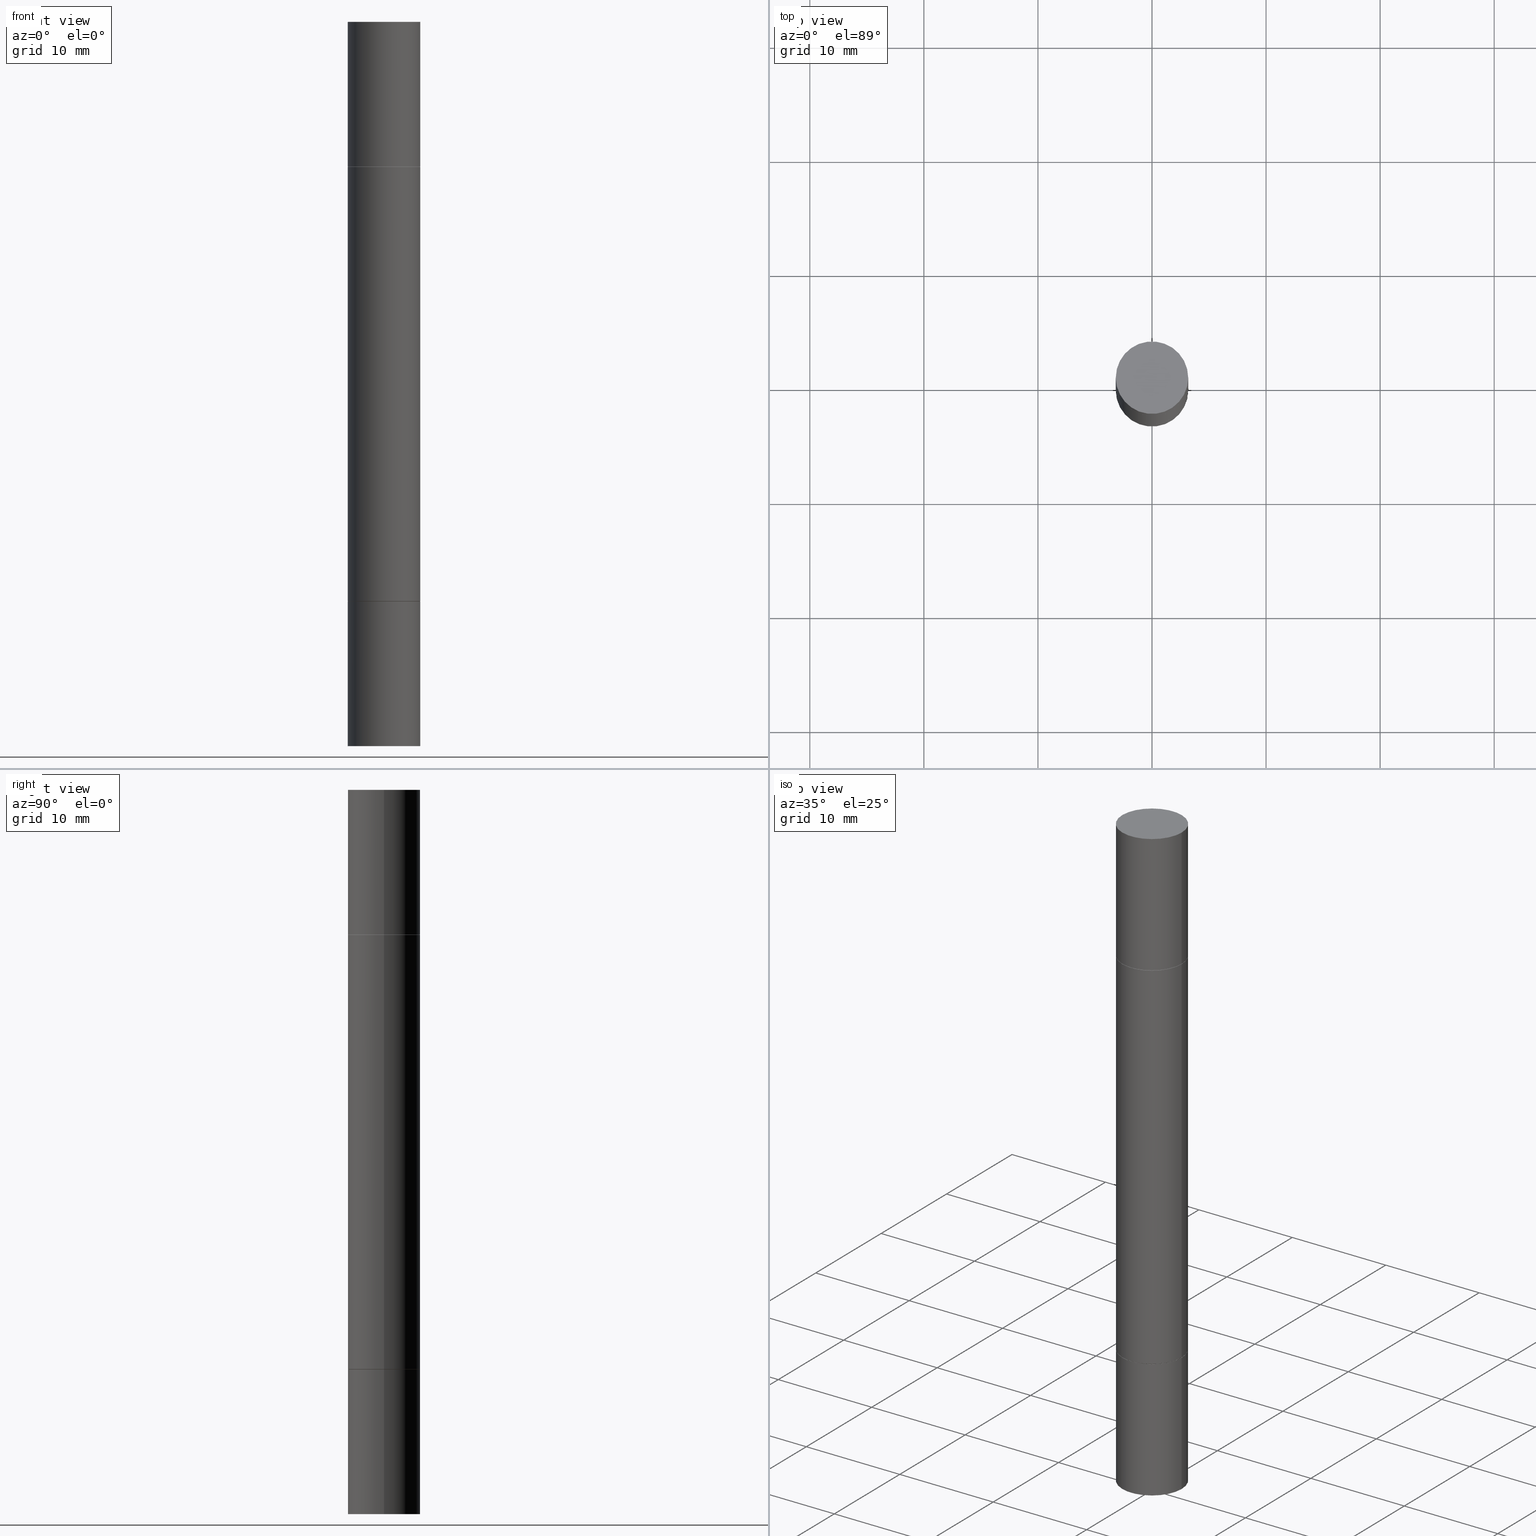
[diagram: canonical four-view strip — front | top / right | iso, engineering-drawing reading convention]
A machine part, canonical four-view strip (front | top / right | iso — engineering-drawing reading convention). The complete STEP part file that produces these views, byte-faithful:
ISO-10303-21;
HEADER;
FILE_DESCRIPTION (( 'STEP AP203' ),
    '1' );
FILE_NAME ('39629.STEP',
    '2024-03-04T15:43:30',
    ( '' ),
    ( '' ),
    'SwSTEP 2.0',
    'SolidWorks 2023',
    '' );
FILE_SCHEMA (( 'CONFIG_CONTROL_DESIGN' ));
ENDSEC;

DATA;
#1 = CYLINDRICAL_SURFACE ( 'NONE', #407, 0.1250000000000000000 ) ;
#2 = AXIS2_PLACEMENT_3D ( 'NONE', #516, #297, #671 ) ;
#3 = AXIS2_PLACEMENT_3D ( 'NONE', #584, #80, #317 ) ;
#4 = EDGE_CURVE ( 'NONE', #480, #491, #390, .T. ) ;
#5 = ORIENTED_EDGE ( 'NONE', *, *, #632, .T. ) ;
#6 = FACE_OUTER_BOUND ( 'NONE', #273, .T. ) ;
#7 = ORIENTED_EDGE ( 'NONE', *, *, #357, .T. ) ;
#8 = CARTESIAN_POINT ( 'NONE',  ( 8.728703347108321496E-16, 0.1249999999999930195, -2.000000000000000444 ) ) ;
#9 = ADVANCED_FACE ( 'NONE', ( #603 ), #279, .T. ) ;
#10 = CC_DESIGN_PERSON_AND_ORGANIZATION_ASSIGNMENT ( #53, #104, ( #271 ) ) ;
#11 = VERTEX_POINT ( 'NONE', #490 ) ;
#12 = CARTESIAN_POINT ( 'NONE',  ( -0.1250000000000000000, -7.872902438272180196E-15, -2.499999999999999556 ) ) ;
#13 = CIRCLE ( 'NONE', #577, 0.1249999999999999861 ) ;
#14 = ORIENTED_EDGE ( 'NONE', *, *, #302, .T. ) ;
#15 = CIRCLE ( 'NONE', #27, 0.1239999999999999991 ) ;
#16 = VECTOR ( 'NONE', #525, 39.37007874015748143 ) ;
#17 = DIRECTION ( 'NONE',  ( 1.000000000000000000, -6.982962677686266711E-15, 0.000000000000000000 ) ) ;
#18 = APPROVAL_STATUS ( 'not_yet_approved' ) ;
#19 = ORIENTED_EDGE ( 'NONE', *, *, #306, .T. ) ;
#20 = CARTESIAN_POINT ( 'NONE',  ( 4.888492143564087591E-29, -1.748176755301667838E-15, -0.5009999999999996678 ) ) ;
#21 = CALENDAR_DATE ( 2024, 4, 3 ) ;
#22 = DIRECTION ( 'NONE',  ( 1.000000000000000000, -6.982962677686263555E-15, 0.000000000000000000 ) ) ;
#23 = DIRECTION ( 'NONE',  ( 0.7071067811866138531, -2.468850131082952047E-15, 0.7071067811864811814 ) ) ;
#24 = PLANE ( 'NONE',  #507 ) ;
#25 = DATE_AND_TIME ( #21, #580 ) ;
#26 = DIRECTION ( 'NONE',  ( 2.445468806185136597E-29, 3.492890411551752677E-15, 1.000000000000000000 ) ) ;
#27 = AXIS2_PLACEMENT_3D ( 'NONE', #108, #145, #305 ) ;
#28 = CIRCLE ( 'NONE', #261, 0.1250000000000000000 ) ;
#29 = DIRECTION ( 'NONE',  ( 1.000000000000000000, -6.982962677686266711E-15, 0.000000000000000000 ) ) ;
#30 = DIRECTION ( 'NONE',  ( 2.438088387897960049E-29, -3.491481338843145188E-15, -1.000000000000000000 ) ) ;
#31 = CALENDAR_DATE ( 2024, 4, 3 ) ;
#32 = EDGE_CURVE ( 'NONE', #491, #293, #13, .T. ) ;
#33 = CC_DESIGN_DATE_AND_TIME_ASSIGNMENT ( #25, #227, ( #266 ) ) ;
#34 = PERSON_AND_ORGANIZATION_ROLE ( 'design_owner' ) ;
#35 = ORIENTED_EDGE ( 'NONE', *, *, #181, .F. ) ;
#36 = MANIFOLD_SOLID_BREP ( 'Combine1', #295 ) ;
#37 = ORIENTED_EDGE ( 'NONE', *, *, #48, .T. ) ;
#38 = EDGE_CURVE ( 'NONE', #293, #491, #137, .T. ) ;
#39 = FACE_OUTER_BOUND ( 'NONE', #391, .T. ) ;
#40 = APPROVAL_ROLE ( '' ) ;
#41 = PLANE ( 'NONE',  #640 ) ;
#42 = CARTESIAN_POINT ( 'NONE',  ( -0.1249999999999999861, -8.906145055802259979E-16, -0.5009999999999996678 ) ) ;
#43 = CARTESIAN_POINT ( 'NONE',  ( 4.888492143564087591E-29, -6.979471196347447369E-15, -1.998999999999999888 ) ) ;
#44 = ORIENTED_EDGE ( 'NONE', *, *, #160, .F. ) ;
#45 = AXIS2_PLACEMENT_3D ( 'NONE', #453, #665, #464 ) ;
#46 = CARTESIAN_POINT ( 'NONE',  ( 0.1249999999999999861, -2.621047090012450585E-15, -0.5009999999999996678 ) ) ;
#47 = DIRECTION ( 'NONE',  ( 2.438088387897959769E-29, 3.492890411551753071E-15, 1.000000000000000000 ) ) ;
#48 = EDGE_CURVE ( 'NONE', #480, #424, #520, .T. ) ;
#49 = SECURITY_CLASSIFICATION_LEVEL ( 'unclassified' ) ;
#50 = DIMENSIONAL_EXPONENTS ( 1.000000000000000000, 0.000000000000000000, 0.000000000000000000, 0.000000000000000000, 0.000000000000000000, 0.000000000000000000, 0.000000000000000000 ) ;
#51 = LINE ( 'NONE', #398, #322 ) ;
#52 = CARTESIAN_POINT ( 'NONE',  ( 4.890937612370272633E-29, -6.982962677686290376E-15, -1.999999999999999778 ) ) ;
#53 = PERSON_AND_ORGANIZATION ( #549, #138 ) ;
#54 = CARTESIAN_POINT ( 'NONE',  ( 4.890937612370273194E-29, -6.982962677686291165E-15, -2.000000000000000000 ) ) ;
#55 = DIRECTION ( 'NONE',  ( 1.000000000000000000, -6.982962677686267499E-15, 0.000000000000000000 ) ) ;
#56 = CARTESIAN_POINT ( 'NONE',  ( 0.000000000000000000, -8.730464687993621641E-15, -2.499999999999999556 ) ) ;
#57 = CIRCLE ( 'NONE', #216, 0.1250000000000000000 ) ;
#58 = AXIS2_PLACEMENT_3D ( 'NONE', #142, #620, #144 ) ;
#59 = DIRECTION ( 'NONE',  ( 2.445468806185136597E-29, 3.492890411551752677E-15, 1.000000000000000000 ) ) ;
#60 = FACE_OUTER_BOUND ( 'NONE', #554, .T. ) ;
#61 = EDGE_CURVE ( 'NONE', #585, #344, #498, .T. ) ;
#62 = CARTESIAN_POINT ( 'NONE',  ( -0.1239999999999999991, -8.922983093733360288E-16, -0.4999999999999998335 ) ) ;
#63 = DIRECTION ( 'NONE',  ( 1.000000000000000000, -6.982962677686270655E-15, 0.000000000000000000 ) ) ;
#64 = AXIS2_PLACEMENT_3D ( 'NONE', #364, #677, #157 ) ;
#65 = APPROVAL_PERSON_ORGANIZATION ( #389, #134, #333 ) ;
#66 = CC_DESIGN_APPROVAL ( #613, ( #242 ) ) ;
#67 = VERTEX_POINT ( 'NONE', #337 ) ;
#68 = ADVANCED_FACE ( 'NONE', ( #443 ), #41, .F. ) ;
#69 = DIRECTION ( 'NONE',  ( 1.000000000000000000, -6.982962677686270655E-15, 0.000000000000000000 ) ) ;
#70 = ADVANCED_FACE ( 'NONE', ( #396 ), #385, .T. ) ;
#71 = ORIENTED_EDGE ( 'NONE', *, *, #386, .F. ) ;
#72 = ORIENTED_EDGE ( 'NONE', *, *, #388, .T. ) ;
#73 = EDGE_LOOP ( 'NONE', ( #538, #645, #457, #220 ) ) ;
#74 = CARTESIAN_POINT ( 'NONE',  ( 4.890937612370272633E-29, -1.744683864890116287E-15, -0.4999999999999998335 ) ) ;
#75 = CARTESIAN_POINT ( 'NONE',  ( 0.1250000000000000000, -8.728703347107833388E-16, 6.095220969744919741E-30 ) ) ;
#76 = EDGE_CURVE ( 'NONE', #323, #426, #680, .T. ) ;
#77 = ORIENTED_EDGE ( 'NONE', *, *, #447, .F. ) ;
#78 = CC_DESIGN_PERSON_AND_ORGANIZATION_ASSIGNMENT ( #402, #622, ( #242 ) ) ;
#79 = AXIS2_PLACEMENT_3D ( 'NONE', #628, #237, #254 ) ;
#80 = DIRECTION ( 'NONE',  ( 2.445468806185136597E-29, 3.492890411551752677E-15, 1.000000000000000000 ) ) ;
#81 = PLANE ( 'NONE',  #649 ) ;
#82 = CALENDAR_DATE ( 2024, 4, 3 ) ;
#83 = EDGE_LOOP ( 'NONE', ( #653, #451 ) ) ;
#84 =( LENGTH_UNIT ( ) NAMED_UNIT ( * ) SI_UNIT ( $, .METRE. ) );
#85 = DIRECTION ( 'NONE',  ( -2.445468806185136877E-29, 3.491481338843145188E-15, 1.000000000000000000 ) ) ;
#86 = DIRECTION ( 'NONE',  ( 0.000000000000000000, 0.000000000000000000, 1.000000000000000000 ) ) ;
#87 = ORIENTED_EDGE ( 'NONE', *, *, #527, .T. ) ;
#88 = DIRECTION ( 'NONE',  ( -2.445468806185136877E-29, -3.492890411551753071E-15, -1.000000000000000000 ) ) ;
#89 = ORIENTED_EDGE ( 'NONE', *, *, #557, .T. ) ;
#90 = AXIS2_PLACEMENT_3D ( 'NONE', #52, #106, #621 ) ;
#91 = AXIS2_PLACEMENT_3D ( 'NONE', #107, #515, #63 ) ;
#92 = CARTESIAN_POINT ( 'NONE',  ( -0.1250000000000000000, -6.967654592696952427E-15, -2.000000000000000000 ) ) ;
#93 = DESIGN_CONTEXT ( 'detailed design', #572, 'design' ) ;
#94 = DIRECTION ( 'NONE',  ( 1.000000000000000000, -6.982962677686267499E-15, 0.000000000000000000 ) ) ;
#95 = ORIENTED_EDGE ( 'NONE', *, *, #288, .T. ) ;
#96 = ADVANCED_FACE ( 'NONE', ( #633 ), #162, .F. ) ;
#97 = CYLINDRICAL_SURFACE ( 'NONE', #452, 0.1249999999999998612 ) ;
#98 = ORIENTED_EDGE ( 'NONE', *, *, #479, .T. ) ;
#99 = ORIENTED_EDGE ( 'NONE', *, *, #76, .F. ) ;
#100 = DATE_AND_TIME ( #31, #161 ) ;
#101 = ADVANCED_FACE ( 'NONE', ( #114 ), #405, .F. ) ;
#102 = CARTESIAN_POINT ( 'NONE',  ( -0.1249999999999998612, -2.198701964706358019E-15, -1.249999999999999778 ) ) ;
#103 = CARTESIAN_POINT ( 'NONE',  ( 0.1249999999999999861, -2.621047090012450585E-15, -0.5009999999999996678 ) ) ;
#104 = PERSON_AND_ORGANIZATION_ROLE ( 'design_supplier' ) ;
#105 = DIRECTION ( 'NONE',  ( -0.000000000000000000, -3.492185875197449130E-15, -1.000000000000000000 ) ) ;
#106 = DIRECTION ( 'NONE',  ( -2.445468806185136597E-29, 3.491481338843145583E-15, 1.000000000000000000 ) ) ;
#107 = CARTESIAN_POINT ( 'NONE',  ( 4.890937612370273194E-29, -6.982962677686291165E-15, -2.000000000000000000 ) ) ;
#108 = CARTESIAN_POINT ( 'NONE',  ( 4.890937612370272633E-29, -1.744683864890116287E-15, -0.4999999999999998335 ) ) ;
#109 = CC_DESIGN_PERSON_AND_ORGANIZATION_ASSIGNMENT ( #115, #316, ( #271 ) ) ;
#110 = CARTESIAN_POINT ( 'NONE',  ( 4.890937612370272633E-29, -1.744683864890116287E-15, -0.4999999999999998335 ) ) ;
#111 = CARTESIAN_POINT ( 'NONE',  ( 0.000000000000000000, 0.000000000000000000, 0.000000000000000000 ) ) ;
#112 = ORIENTED_EDGE ( 'NONE', *, *, #257, .F. ) ;
#113 = AXIS2_PLACEMENT_3D ( 'NONE', #291, #502, #29 ) ;
#114 = FACE_OUTER_BOUND ( 'NONE', #639, .T. ) ;
#115 = PERSON_AND_ORGANIZATION ( #549, #138 ) ;
#116 = EDGE_LOOP ( 'NONE', ( #99, #368, #95, #641 ) ) ;
#117 = EDGE_CURVE ( 'NONE', #344, #351, #495, .T. ) ;
#118 = AXIS2_PLACEMENT_3D ( 'NONE', #431, #26, #94 ) ;
#119 = EDGE_LOOP ( 'NONE', ( #318, #501, #417, #130 ) ) ;
#120 = ORIENTED_EDGE ( 'NONE', *, *, #258, .T. ) ;
#121 = DIRECTION ( 'NONE',  ( -2.445468806185136597E-29, -3.492890411551752677E-15, -1.000000000000000000 ) ) ;
#122 = ORIENTED_EDGE ( 'NONE', *, *, #48, .F. ) ;
#123 = CARTESIAN_POINT ( 'NONE',  ( 0.000000000000000000, -8.730464687993621641E-15, -2.499999999999999556 ) ) ;
#124 = DIRECTION ( 'NONE',  ( 1.000000000000000000, -6.982962677686262766E-15, 0.000000000000000000 ) ) ;
#125 = DATE_AND_TIME ( #164, #522 ) ;
#126 = APPLICATION_PROTOCOL_DEFINITION ( 'international standard', 'config_control_design', 1994, #572 ) ;
#127 = ORIENTED_EDGE ( 'NONE', *, *, #278, .T. ) ;
#128 = AXIS2_PLACEMENT_3D ( 'NONE', #382, #659, #124 ) ;
#129 = APPROVAL_PERSON_ORGANIZATION ( #526, #613, #274 ) ;
#130 = ORIENTED_EDGE ( 'NONE', *, *, #155, .T. ) ;
#131 = EDGE_CURVE ( 'NONE', #599, #485, #342, .T. ) ;
#132 = CARTESIAN_POINT ( 'NONE',  ( -0.1249999999999998612, -7.872902438272180196E-15, -2.499999999999999556 ) ) ;
#133 = CYLINDRICAL_SURFACE ( 'NONE', #128, 0.1249999999999998612 ) ;
#134 = APPROVAL ( #343, 'UNSPECIFIED' ) ;
#135 = ADVANCED_FACE ( 'NONE', ( #574 ), #226, .T. ) ;
#136 = DIRECTION ( 'NONE',  ( 1.000000000000000000, -6.982962677686263555E-15, 0.000000000000000000 ) ) ;
#137 = CIRCLE ( 'NONE', #579, 0.1249999999999999861 ) ;
#138 = ORGANIZATION ( 'UNSPECIFIED', 'UNSPECIFIED', '' ) ;
#139 = LOCAL_TIME ( 10, 43, 30.00000000000000000, #148 ) ;
#140 = DIRECTION ( 'NONE',  ( 1.000000000000000000, -6.982962677686265922E-15, 4.876176775795935793E-29 ) ) ;
#141 = EDGE_LOOP ( 'NONE', ( #120, #642 ) ) ;
#142 = CARTESIAN_POINT ( 'NONE',  ( 0.000000000000000000, -8.730464687993621641E-15, -2.499999999999999556 ) ) ;
#143 = ORIENTED_EDGE ( 'NONE', *, *, #627, .T. ) ;
#144 = DIRECTION ( 'NONE',  ( 1.000000000000000000, -6.982962677686262766E-15, 0.000000000000000000 ) ) ;
#145 = DIRECTION ( 'NONE',  ( 2.445468806185136597E-29, 3.492890411551752677E-15, 1.000000000000000000 ) ) ;
#146 = AXIS2_PLACEMENT_3D ( 'NONE', #313, #668, #193 ) ;
#147 = CIRCLE ( 'NONE', #484, 0.1249999999999998612 ) ;
#148 = COORDINATED_UNIVERSAL_TIME_OFFSET ( 5, 0, .BEHIND. ) ;
#149 = CARTESIAN_POINT ( 'NONE',  ( 0.1250000000000000000, -2.617554199600898443E-15, -0.4999999999999996114 ) ) ;
#150 = ADVANCED_BREP_SHAPE_REPRESENTATION ( '39629', ( #243, #476, #246, #247, #36, #397 ), #423 ) ;
#151 = FACE_OUTER_BOUND ( 'NONE', #437, .T. ) ;
#152 = EDGE_LOOP ( 'NONE', ( #268, #185, #267, #71 ) ) ;
#153 = ADVANCED_FACE ( 'NONE', ( #353 ), #629, .T. ) ;
#154 = CC_DESIGN_PERSON_AND_ORGANIZATION_ASSIGNMENT ( #384, #487, ( #266 ) ) ;
#155 = EDGE_CURVE ( 'NONE', #424, #480, #187, .T. ) ;
#156 = CARTESIAN_POINT ( 'NONE',  ( -0.1239999999999999991, -8.939821131664464541E-16, -0.4999999999999998335 ) ) ;
#157 = DIRECTION ( 'NONE',  ( 1.000000000000000000, -6.982962677686265922E-15, 9.839502134516470631E-33 ) ) ;
#158 = DIRECTION ( 'NONE',  ( -1.000000000000000000, 6.982962677686265922E-15, -9.839502134516470631E-33 ) ) ;
#159 = AXIS2_PLACEMENT_3D ( 'NONE', #211, #531, #69 ) ;
#160 = EDGE_CURVE ( 'NONE', #581, #11, #281, .T. ) ;
#161 = LOCAL_TIME ( 10, 43, 30.00000000000000000, #234 ) ;
#162 = PLANE ( 'NONE',  #483 ) ;
#163 = ORIENTED_EDGE ( 'NONE', *, *, #290, .F. ) ;
#164 = CALENDAR_DATE ( 2024, 4, 3 ) ;
#165 = VERTEX_POINT ( 'NONE', #249 ) ;
#166 = CIRCLE ( 'NONE', #159, 0.1250000000000000000 ) ;
#167 = CONICAL_SURFACE ( 'NONE', #651, 0.1239999999999999991, 0.7853981633975420928 ) ;
#168 = VERTEX_POINT ( 'NONE', #62 ) ;
#169 = ADVANCED_FACE ( 'NONE', ( #151 ), #466, .T. ) ;
#170 = CARTESIAN_POINT ( 'NONE',  ( 0.1239999999999999991, -7.848850049719387701E-15, -1.999999999999999778 ) ) ;
#171 = EDGE_CURVE ( 'NONE', #372, #550, #320, .T. ) ;
#172 = ORIENTED_EDGE ( 'NONE', *, *, #583, .F. ) ;
#173 = FACE_OUTER_BOUND ( 'NONE', #605, .T. ) ;
#174 = MECHANICAL_CONTEXT ( 'NONE', #277, 'mechanical' ) ;
#175 = EDGE_LOOP ( 'NONE', ( #473, #236, #222, #636 ) ) ;
#176 = DIRECTION ( 'NONE',  ( -0.7071067811866138531, 2.381258160591953236E-15, -0.7071067811864811814 ) ) ;
#177 = AXIS2_PLACEMENT_3D ( 'NONE', #509, #410, #308 ) ;
#178 = CARTESIAN_POINT ( 'NONE',  ( -0.1250000000000000000, 8.881784197001252323E-16, -6.148668862818632227E-30 ) ) ;
#179 = EDGE_CURVE ( 'NONE', #329, #467, #15, .T. ) ;
#180 = ORIENTED_EDGE ( 'NONE', *, *, #117, .T. ) ;
#181 = EDGE_CURVE ( 'NONE', #424, #293, #256, .T. ) ;
#182 = DIRECTION ( 'NONE',  ( 0.000000000000000000, 3.492185875197449524E-15, 1.000000000000000000 ) ) ;
#183 = EDGE_CURVE ( 'NONE', #532, #585, #57, .T. ) ;
#184 = CARTESIAN_POINT ( 'NONE',  ( -0.1250000000000000000, -7.872902438272180196E-15, -2.499999999999999556 ) ) ;
#185 = ORIENTED_EDGE ( 'NONE', *, *, #678, .T. ) ;
#186 = CLOSED_SHELL ( 'NONE', ( #169, #70, #215, #643 ) ) ;
#187 = CIRCLE ( 'NONE', #468, 0.1249999999999999861 ) ;
#188 = CC_DESIGN_APPROVAL ( #134, ( #266 ) ) ;
#189 = APPROVAL ( #442, 'UNSPECIFIED' ) ;
#190 = DIRECTION ( 'NONE',  ( -2.445468806185136597E-29, -3.492890411551752677E-15, -1.000000000000000000 ) ) ;
#191 = VERTEX_POINT ( 'NONE', #103 ) ;
#192 = LINE ( 'NONE', #348, #496 ) ;
#193 = DIRECTION ( 'NONE',  ( 1.000000000000000000, -6.982962677686266711E-15, 0.000000000000000000 ) ) ;
#194 = CARTESIAN_POINT ( 'NONE',  ( 4.890937612370272633E-29, -6.982962677686290376E-15, -1.999999999999999778 ) ) ;
#195 = CARTESIAN_POINT ( 'NONE',  ( 0.1250000000000000000, -9.601573681818648281E-15, -2.500000000000000000 ) ) ;
#196 = DIRECTION ( 'NONE',  ( 1.000000000000000000, -6.982962677686266711E-15, 0.000000000000000000 ) ) ;
#197 = ORIENTED_EDGE ( 'NONE', *, *, #534, .T. ) ;
#198 = VECTOR ( 'NONE', #359, 39.37007874015748143 ) ;
#199 = CARTESIAN_POINT ( 'NONE',  ( 4.890937612370272633E-29, -1.744683864890116287E-15, -0.4999999999999998335 ) ) ;
#200 = CARTESIAN_POINT ( 'NONE',  ( -0.1249999999999998612, -7.872902438272180196E-15, -2.499999999999999556 ) ) ;
#201 = CARTESIAN_POINT ( 'NONE',  ( 6.113672015462842613E-29, 1.761340885760521790E-18, 5.463695987328526437E-16 ) ) ;
#202 = DIRECTION ( 'NONE',  ( 1.000000000000000000, -6.982962677686266711E-15, 0.000000000000000000 ) ) ;
#203 = DIRECTION ( 'NONE',  ( -2.445468806185136877E-29, -3.492890411551753071E-15, -1.000000000000000000 ) ) ;
#204 = ADVANCED_FACE ( 'NONE', ( #413 ), #406, .T. ) ;
#205 = DIRECTION ( 'NONE',  ( 2.445468806185136597E-29, 3.492890411551752677E-15, 1.000000000000000000 ) ) ;
#206 = CLOSED_SHELL ( 'NONE', ( #303, #637, #96, #493 ) ) ;
#207 = CIRCLE ( 'NONE', #564, 0.1249999999999999861 ) ;
#208 = VECTOR ( 'NONE', #615, 39.37007874015748143 ) ;
#209 = ORIENTED_EDGE ( 'NONE', *, *, #32, .F. ) ;
#210 = CARTESIAN_POINT ( 'NONE',  ( 4.890937612370272633E-29, -1.744683864890116287E-15, -0.4999999999999998335 ) ) ;
#211 = CARTESIAN_POINT ( 'NONE',  ( 6.113672015462842613E-29, -8.728703347107864943E-15, -2.500000000000000000 ) ) ;
#212 = ORIENTED_EDGE ( 'NONE', *, *, #265, .F. ) ;
#213 = FACE_OUTER_BOUND ( 'NONE', #355, .T. ) ;
#214 = ORIENTED_EDGE ( 'NONE', *, *, #428, .F. ) ;
#215 = ADVANCED_FACE ( 'NONE', ( #60 ), #255, .F. ) ;
#216 = AXIS2_PLACEMENT_3D ( 'NONE', #253, #460, #675 ) ;
#217 = AXIS2_PLACEMENT_3D ( 'NONE', #530, #591, #219 ) ;
#218 = ORIENTED_EDGE ( 'NONE', *, *, #61, .T. ) ;
#219 = DIRECTION ( 'NONE',  ( -1.000000000000000000, 6.982962677686265922E-15, -9.839502134516470631E-33 ) ) ;
#220 = ORIENTED_EDGE ( 'NONE', *, *, #302, .F. ) ;
#221 = CARTESIAN_POINT ( 'NONE',  ( 4.890937612370272633E-29, -6.982962677686290376E-15, -1.999999999999999778 ) ) ;
#222 = ORIENTED_EDGE ( 'NONE', *, *, #388, .F. ) ;
#223 = DIRECTION ( 'NONE',  ( 1.000000000000000000, -6.982962677686266711E-15, 0.000000000000000000 ) ) ;
#224 = CARTESIAN_POINT ( 'NONE',  ( 0.000000000000000000, 0.000000000000000000, 0.000000000000000000 ) ) ;
#225 = CARTESIAN_POINT ( 'NONE',  ( 8.728703347108443769E-16, 0.1249999999999912709, -2.500000000000000444 ) ) ;
#226 = CONICAL_SURFACE ( 'NONE', #375, 0.1239999999999999991, 0.7853981633975420928 ) ;
#227 = DATE_TIME_ROLE ( 'creation_date' ) ;
#228 = ORIENTED_EDGE ( 'NONE', *, *, #371, .F. ) ;
#229 = CONICAL_SURFACE ( 'NONE', #469, 0.1239999999999999991, 0.7853981633975420928 ) ;
#230 = APPROVAL_DATE_TIME ( #275, #134 ) ;
#231 = DIRECTION ( 'NONE',  ( -2.445468806185136877E-29, 3.491481338843145188E-15, 1.000000000000000000 ) ) ;
#232 = EDGE_LOOP ( 'NONE', ( #228, #475 ) ) ;
#233 = LINE ( 'NONE', #445, #521 ) ;
#234 = COORDINATED_UNIVERSAL_TIME_OFFSET ( 5, 0, .BEHIND. ) ;
#235 = CARTESIAN_POINT ( 'NONE',  ( 0.000000000000000000, 0.000000000000000000, -1.249999999999999778 ) ) ;
#236 = ORIENTED_EDGE ( 'NONE', *, *, #76, .T. ) ;
#237 = DIRECTION ( 'NONE',  ( -2.445468806185136597E-29, -3.492890411551752677E-15, -1.000000000000000000 ) ) ;
#238 = DIRECTION ( 'NONE',  ( 2.438088387897959769E-29, 3.492890411551753071E-15, 1.000000000000000000 ) ) ;
#239 = CLOSED_SHELL ( 'NONE', ( #9, #356, #676, #153 ) ) ;
#240 = AXIS2_PLACEMENT_3D ( 'NONE', #465, #630, #158 ) ;
#241 = ORIENTED_EDGE ( 'NONE', *, *, #179, .T. ) ;
#242 = SECURITY_CLASSIFICATION ( '', '', #49 ) ;
#243 = MANIFOLD_SOLID_BREP ( 'Body-Move/Copy2[1]', #239 ) ;
#244 = DIRECTION ( 'NONE',  ( -2.438088387897960049E-29, 3.491481338843145188E-15, 1.000000000000000000 ) ) ;
#245 = CARTESIAN_POINT ( 'NONE',  ( 8.728703347108321496E-16, 0.1249999999999982514, -0.4999999999999998335 ) ) ;
#246 = MANIFOLD_SOLID_BREP ( 'Mirror1[3]', #186 ) ;
#247 = MANIFOLD_SOLID_BREP ( 'Mirror1[4]', #206 ) ;
#248 = DIRECTION ( 'NONE',  ( 1.000000000000000000, -6.982962677686262766E-15, 0.000000000000000000 ) ) ;
#249 = CARTESIAN_POINT ( 'NONE',  ( 0.1250000000000000000, -8.711089938250227947E-16, 5.463695987328526437E-16 ) ) ;
#250 = ADVANCED_FACE ( 'NONE', ( #578 ), #298, .T. ) ;
#251 = CC_DESIGN_PERSON_AND_ORGANIZATION_ASSIGNMENT ( #272, #34, ( #598 ) ) ;
#252 = FACE_OUTER_BOUND ( 'NONE', #175, .T. ) ;
#253 = CARTESIAN_POINT ( 'NONE',  ( 6.113672015462842613E-29, -8.728703347107864943E-15, -2.500000000000000000 ) ) ;
#254 = DIRECTION ( 'NONE',  ( 1.000000000000000000, -6.982962677686270655E-15, 0.000000000000000000 ) ) ;
#255 = PLANE ( 'NONE',  #240 ) ;
#256 = LINE ( 'NONE', #411, #422 ) ;
#257 = EDGE_CURVE ( 'NONE', #329, #323, #646, .T. ) ;
#258 = EDGE_CURVE ( 'NONE', #165, #67, #461, .T. ) ;
#259 = EDGE_LOOP ( 'NONE', ( #122, #648, #608, #35 ) ) ;
#260 = CIRCLE ( 'NONE', #539, 0.1239999999999999991 ) ;
#261 = AXIS2_PLACEMENT_3D ( 'NONE', #474, #205, #536 ) ;
#262 = ORIENTED_EDGE ( 'NONE', *, *, #583, .T. ) ;
#263 = DIRECTION ( 'NONE',  ( 1.000000000000000000, -6.982962677686270655E-15, 0.000000000000000000 ) ) ;
#264 = ORIENTED_EDGE ( 'NONE', *, *, #181, .T. ) ;
#265 = EDGE_CURVE ( 'NONE', #532, #351, #537, .T. ) ;
#266 = PRODUCT_DEFINITION ( 'UNKNOWN', '', #271, #93 ) ;
#267 = ORIENTED_EDGE ( 'NONE', *, *, #131, .T. ) ;
#268 = ORIENTED_EDGE ( 'NONE', *, *, #171, .F. ) ;
#269 = DIRECTION ( 'NONE',  ( 2.445468806185136597E-29, 3.492890411551752677E-15, 1.000000000000000000 ) ) ;
#270 = AXIS2_PLACEMENT_3D ( 'NONE', #194, #403, #321 ) ;
#271 = PRODUCT_DEFINITION_FORMATION_WITH_SPECIFIED_SOURCE ( 'ANY', '', #598, .NOT_KNOWN. ) ;
#272 = PERSON_AND_ORGANIZATION ( #549, #138 ) ;
#273 = EDGE_LOOP ( 'NONE', ( #631, #657, #616, #262 ) ) ;
#274 = APPROVAL_ROLE ( '' ) ;
#275 = DATE_AND_TIME ( #82, #435 ) ;
#276 = ORIENTED_EDGE ( 'NONE', *, *, #524, .T. ) ;
#277 = APPLICATION_CONTEXT ( 'configuration controlled 3d designs of mechanical parts and assemblies' ) ;
#278 = EDGE_CURVE ( 'NONE', #585, #532, #166, .T. ) ;
#279 = CYLINDRICAL_SURFACE ( 'NONE', #481, 0.1250000000000000000 ) ;
#280 = CYLINDRICAL_SURFACE ( 'NONE', #311, 0.1250000000000000000 ) ;
#281 = CIRCLE ( 'NONE', #90, 0.1239999999999999991 ) ;
#282 = APPLICATION_PROTOCOL_DEFINITION ( 'international standard', 'config_control_design', 1994, #277 ) ;
#283 = DIRECTION ( 'NONE',  ( -2.445468806185136597E-29, 3.491481338843145583E-15, 1.000000000000000000 ) ) ;
#284 = VECTOR ( 'NONE', #518, 39.37007874015748143 ) ;
#285 = CC_DESIGN_SECURITY_CLASSIFICATION ( #242, ( #271 ) ) ;
#286 = ORIENTED_EDGE ( 'NONE', *, *, #341, .T. ) ;
#287 = DIRECTION ( 'NONE',  ( 1.000000000000000000, -6.982962677686267499E-15, 0.000000000000000000 ) ) ;
#288 = EDGE_CURVE ( 'NONE', #191, #570, #551, .T. ) ;
#289 = CARTESIAN_POINT ( 'NONE',  ( 4.888492143564087591E-29, -6.979471196347447369E-15, -1.998999999999999888 ) ) ;
#290 = EDGE_CURVE ( 'NONE', #550, #372, #365, .T. ) ;
#291 = CARTESIAN_POINT ( 'NONE',  ( 4.890937612370272633E-29, -1.744683864890116287E-15, -0.4999999999999998335 ) ) ;
#292 = LINE ( 'NONE', #361, #208 ) ;
#293 = VERTEX_POINT ( 'NONE', #658 ) ;
#294 = ORIENTED_EDGE ( 'NONE', *, *, #557, .F. ) ;
#295 = CLOSED_SHELL ( 'NONE', ( #250, #314, #679, #363, #444, #335, #135, #458 ) ) ;
#296 = CARTESIAN_POINT ( 'NONE',  ( 0.000000000000000000, -8.730464687993621641E-15, -2.499999999999999556 ) ) ;
#297 = DIRECTION ( 'NONE',  ( -2.445468806185136597E-29, -3.492890411551752677E-15, -1.000000000000000000 ) ) ;
#298 = CONICAL_SURFACE ( 'NONE', #270, 0.1239999999999999991, 0.7853981633975420928 ) ;
#299 = CIRCLE ( 'NONE', #529, 0.1239999999999999991 ) ;
#300 = DIRECTION ( 'NONE',  ( 2.445468806185136597E-29, 3.492890411551752677E-15, 1.000000000000000000 ) ) ;
#301 = DIRECTION ( 'NONE',  ( -1.000000000000000000, 6.982962677686265922E-15, -9.839502134516470631E-33 ) ) ;
#302 = EDGE_CURVE ( 'NONE', #581, #293, #610, .T. ) ;
#303 = ADVANCED_FACE ( 'NONE', ( #654 ), #280, .T. ) ;
#304 = LINE ( 'NONE', #156, #198 ) ;
#305 = DIRECTION ( 'NONE',  ( 1.000000000000000000, -6.982962677686266711E-15, 0.000000000000000000 ) ) ;
#306 = EDGE_CURVE ( 'NONE', #467, #329, #612, .T. ) ;
#307 = FACE_OUTER_BOUND ( 'NONE', #543, .T. ) ;
#308 = DIRECTION ( 'NONE',  ( 1.000000000000000000, -6.982962677686266711E-15, 0.000000000000000000 ) ) ;
#309 = ORIENTED_EDGE ( 'NONE', *, *, #179, .F. ) ;
#310 = DIRECTION ( 'NONE',  ( -2.445468806185136597E-29, -3.492890411551752677E-15, -1.000000000000000000 ) ) ;
#311 = AXIS2_PLACEMENT_3D ( 'NONE', #432, #346, #492 ) ;
#312 = AXIS2_PLACEMENT_3D ( 'NONE', #8, #367, #379 ) ;
#313 = CARTESIAN_POINT ( 'NONE',  ( 4.890937612370273194E-29, -1.744683864890115301E-15, -0.4999999999999996114 ) ) ;
#314 = ADVANCED_FACE ( 'NONE', ( #448 ), #669, .T. ) ;
#315 = DIRECTION ( 'NONE',  ( 1.000000000000000000, -6.982962677686262766E-15, 0.000000000000000000 ) ) ;
#316 = PERSON_AND_ORGANIZATION_ROLE ( 'creator' ) ;
#317 = DIRECTION ( 'NONE',  ( 1.000000000000000000, -6.982962677686266711E-15, 0.000000000000000000 ) ) ;
#318 = ORIENTED_EDGE ( 'NONE', *, *, #479, .F. ) ;
#319 = CARTESIAN_POINT ( 'NONE',  ( -0.1250000000000000000, -1.389901228073636467E-17, -0.4999999999999996114 ) ) ;
#320 = CIRCLE ( 'NONE', #600, 0.1250000000000000000 ) ;
#321 = DIRECTION ( 'NONE',  ( 1.000000000000000000, -6.982962677686270655E-15, 0.000000000000000000 ) ) ;
#322 = VECTOR ( 'NONE', #670, 39.37007874015748143 ) ;
#323 = VERTEX_POINT ( 'NONE', #430 ) ;
#324 = FACE_OUTER_BOUND ( 'NONE', #560, .T. ) ;
#325 = EDGE_LOOP ( 'NONE', ( #535, #286, #14, #209 ) ) ;
#326 = DATE_TIME_ROLE ( 'classification_date' ) ;
#327 = ORIENTED_EDGE ( 'NONE', *, *, #470, .T. ) ;
#328 = CARTESIAN_POINT ( 'NONE',  ( -0.1239999999999999991, -8.939821131664464541E-16, -0.4999999999999998335 ) ) ;
#329 = VERTEX_POINT ( 'NONE', #607 ) ;
#330 = DIRECTION ( 'NONE',  ( -2.445468806185136597E-29, -3.492890411551752677E-15, -1.000000000000000000 ) ) ;
#331 = DIRECTION ( 'NONE',  ( 2.445468806185136597E-29, 3.492890411551752677E-15, 1.000000000000000000 ) ) ;
#332 = CIRCLE ( 'NONE', #3, 0.1239999999999999991 ) ;
#333 = APPROVAL_ROLE ( '' ) ;
#334 = ORIENTED_EDGE ( 'NONE', *, *, #117, .F. ) ;
#335 = ADVANCED_FACE ( 'NONE', ( #39 ), #133, .T. ) ;
#336 = DIRECTION ( 'NONE',  ( 2.445468806185136597E-29, 3.492890411551752677E-15, 1.000000000000000000 ) ) ;
#337 = CARTESIAN_POINT ( 'NONE',  ( -0.1250000000000000000, -1.389901228073636467E-17, 5.463695987328557991E-16 ) ) ;
#338 = DIRECTION ( 'NONE',  ( 1.000000000000000000, -6.982962677686265922E-15, 9.839502134516470631E-33 ) ) ;
#339 = CARTESIAN_POINT ( 'NONE',  ( 0.000000000000000000, 0.000000000000000000, 0.000000000000000000 ) ) ;
#340 = ORIENTED_EDGE ( 'NONE', *, *, #428, .T. ) ;
#341 = EDGE_CURVE ( 'NONE', #11, #581, #260, .T. ) ;
#342 = CIRCLE ( 'NONE', #146, 0.1250000000000000000 ) ;
#343 = APPROVAL_STATUS ( 'not_yet_approved' ) ;
#344 = VERTEX_POINT ( 'NONE', #92 ) ;
#345 = AXIS2_PLACEMENT_3D ( 'NONE', #369, #269, #586 ) ;
#346 = DIRECTION ( 'NONE',  ( -2.445468806185136597E-29, -3.492890411551752677E-15, -1.000000000000000000 ) ) ;
#347 = DIRECTION ( 'NONE',  ( 2.445468806185136597E-29, 3.492890411551752677E-15, 1.000000000000000000 ) ) ;
#348 = CARTESIAN_POINT ( 'NONE',  ( 0.1239999999999999991, -2.610571236923213217E-15, -0.4999999999999998335 ) ) ;
#349 = EDGE_LOOP ( 'NONE', ( #546, #218, #294, #212 ) ) ;
#350 = DIRECTION ( 'NONE',  ( -2.445468806185136877E-29, -3.492890411551753071E-15, -1.000000000000000000 ) ) ;
#351 = VERTEX_POINT ( 'NONE', #494 ) ;
#352 = CARTESIAN_POINT ( 'NONE',  ( 3.056836007731420185E-29, -4.364351673553931682E-15, -1.249999999999999778 ) ) ;
#353 = FACE_OUTER_BOUND ( 'NONE', #392, .T. ) ;
#354 = CIRCLE ( 'NONE', #553, 0.1250000000000000000 ) ;
#355 = EDGE_LOOP ( 'NONE', ( #595, #98, #37, #77 ) ) ;
#356 = ADVANCED_FACE ( 'NONE', ( #644 ), #24, .T. ) ;
#357 = EDGE_CURVE ( 'NONE', #323, #191, #207, .T. ) ;
#358 = UNCERTAINTY_MEASURE_WITH_UNIT (LENGTH_MEASURE( 1.000000000000000082E-05 ), #438, 'distance_accuracy_value', 'NONE');
#359 = DIRECTION ( 'NONE',  ( -0.7071067811866138531, 2.381258160591953236E-15, -0.7071067811864811814 ) ) ;
#360 = DIRECTION ( 'NONE',  ( 2.445468806185136597E-29, 3.492890411551752677E-15, 1.000000000000000000 ) ) ;
#361 = CARTESIAN_POINT ( 'NONE',  ( 0.1239999999999999991, -2.610571236923213217E-15, -0.4999999999999998335 ) ) ;
#362 = CARTESIAN_POINT ( 'NONE',  ( 4.888492143564087591E-29, -1.748176755301667838E-15, -0.5009999999999996678 ) ) ;
#363 = ADVANCED_FACE ( 'NONE', ( #173 ), #81, .F. ) ;
#364 = CARTESIAN_POINT ( 'NONE',  ( 4.890937612370273194E-29, -1.744683864890115301E-15, -0.4999999999999996114 ) ) ;
#365 = CIRCLE ( 'NONE', #394, 0.1250000000000000000 ) ;
#366 = CIRCLE ( 'NONE', #91, 0.1250000000000000000 ) ;
#367 = DIRECTION ( 'NONE',  ( 2.438088387897960049E-29, -3.491481338843145188E-15, -1.000000000000000000 ) ) ;
#368 = ORIENTED_EDGE ( 'NONE', *, *, #627, .F. ) ;
#369 = CARTESIAN_POINT ( 'NONE',  ( 4.888492143564087591E-29, -1.748176755301667838E-15, -0.5009999999999996678 ) ) ;
#370 = EDGE_LOOP ( 'NONE', ( #477, #588 ) ) ;
#371 = EDGE_CURVE ( 'NONE', #485, #599, #354, .T. ) ;
#372 = VERTEX_POINT ( 'NONE', #540 ) ;
#373 = CARTESIAN_POINT ( 'NONE',  ( -0.1250000000000000000, -6.967654592696952427E-15, -2.500000000000000000 ) ) ;
#374 = EDGE_CURVE ( 'NONE', #11, #491, #233, .T. ) ;
#375 = AXIS2_PLACEMENT_3D ( 'NONE', #401, #456, #513 ) ;
#376 = CIRCLE ( 'NONE', #602, 0.1250000000000000000 ) ;
#377 = ORIENTED_EDGE ( 'NONE', *, *, #306, .F. ) ;
#378 = ORIENTED_EDGE ( 'NONE', *, *, #265, .T. ) ;
#379 = DIRECTION ( 'NONE',  ( -1.000000000000000000, 6.982962677686265922E-15, -4.876176775795935793E-29 ) ) ;
#380 = CARTESIAN_POINT ( 'NONE',  ( 6.113672015462842613E-29, 1.761340885760521790E-18, 5.463695987328526437E-16 ) ) ;
#381 = EDGE_LOOP ( 'NONE', ( #112, #377, #340, #143 ) ) ;
#382 = CARTESIAN_POINT ( 'NONE',  ( 0.000000000000000000, -8.730464687993621641E-15, -2.499999999999999556 ) ) ;
#383 = AXIS2_PLACEMENT_3D ( 'NONE', #380, #336, #544 ) ;
#384 = PERSON_AND_ORGANIZATION ( #549, #138 ) ;
#385 = PLANE ( 'NONE',  #601 ) ;
#386 = EDGE_CURVE ( 'NONE', #550, #485, #548, .T. ) ;
#387 = DIRECTION ( 'NONE',  ( -2.445468806185136597E-29, 3.491481338843145583E-15, 1.000000000000000000 ) ) ;
#388 = EDGE_CURVE ( 'NONE', #570, #426, #510, .T. ) ;
#389 = PERSON_AND_ORGANIZATION ( #549, #138 ) ;
#390 = LINE ( 'NONE', #132, #611 ) ;
#391 = EDGE_LOOP ( 'NONE', ( #592, #419, #264, #505 ) ) ;
#392 = EDGE_LOOP ( 'NONE', ( #517, #127, #378, #334 ) ) ;
#393 = CARTESIAN_POINT ( 'NONE',  ( 4.890937612370273194E-29, -1.744683864890115301E-15, -0.4999999999999996114 ) ) ;
#394 = AXIS2_PLACEMENT_3D ( 'NONE', #440, #606, #489 ) ;
#395 = CARTESIAN_POINT ( 'NONE',  ( 4.890937612370273194E-29, -1.744683864890115301E-15, -0.4999999999999996114 ) ) ;
#396 = FACE_OUTER_BOUND ( 'NONE', #141, .T. ) ;
#397 = AXIS2_PLACEMENT_3D ( 'NONE', #339, #86, #597 ) ;
#398 = CARTESIAN_POINT ( 'NONE',  ( 0.1250000000000000000, -9.603335022704404980E-15, -2.499999999999999556 ) ) ;
#399 = ORIENTED_EDGE ( 'NONE', *, *, #527, .F. ) ;
#400 = CYLINDRICAL_SURFACE ( 'NONE', #79, 0.1250000000000000000 ) ;
#401 = CARTESIAN_POINT ( 'NONE',  ( 4.890937612370272633E-29, -6.982962677686290376E-15, -1.999999999999999778 ) ) ;
#402 = PERSON_AND_ORGANIZATION ( #549, #138 ) ;
#403 = DIRECTION ( 'NONE',  ( -2.445468806185136597E-29, 3.491481338843145583E-15, 1.000000000000000000 ) ) ;
#404 = DIRECTION ( 'NONE',  ( 1.000000000000000000, -6.982962677686266711E-15, 0.000000000000000000 ) ) ;
#405 = PLANE ( 'NONE',  #64 ) ;
#406 = CONICAL_SURFACE ( 'NONE', #177, 0.1239999999999999991, 0.7853981633975420928 ) ;
#407 = AXIS2_PLACEMENT_3D ( 'NONE', #123, #482, #263 ) ;
#408 = CARTESIAN_POINT ( 'NONE',  ( 0.1249999999999998612, -3.929134549138581225E-15, -1.249999999999999778 ) ) ;
#409 = CARTESIAN_POINT ( 'NONE',  ( 0.1239999999999999991, -2.610571236923213217E-15, -0.4999999999999998335 ) ) ;
#410 = DIRECTION ( 'NONE',  ( -2.445468806185136597E-29, -3.492890411551752677E-15, -1.000000000000000000 ) ) ;
#411 = CARTESIAN_POINT ( 'NONE',  ( 0.1249999999999998612, -9.603335022704403402E-15, -2.499999999999999556 ) ) ;
#412 = FACE_OUTER_BOUND ( 'NONE', #528, .T. ) ;
#413 = FACE_OUTER_BOUND ( 'NONE', #381, .T. ) ;
#414 = VECTOR ( 'NONE', #23, 39.37007874015748143 ) ;
#415 = CARTESIAN_POINT ( 'NONE',  ( -0.1250000000000000000, -1.389901228073636467E-17, -0.4999999999999996114 ) ) ;
#416 = CONICAL_SURFACE ( 'NONE', #624, 0.1239999999999999991, 0.7853981633975420928 ) ;
#417 = ORIENTED_EDGE ( 'NONE', *, *, #447, .T. ) ;
#418 = CALENDAR_DATE ( 2024, 4, 3 ) ;
#419 = ORIENTED_EDGE ( 'NONE', *, *, #155, .F. ) ;
#420 = DIRECTION ( 'NONE',  ( 1.000000000000000000, -6.982962677686266711E-15, 0.000000000000000000 ) ) ;
#421 = ORIENTED_EDGE ( 'NONE', *, *, #257, .T. ) ;
#422 = VECTOR ( 'NONE', #203, 39.37007874015748143 ) ;
#423 =( GEOMETRIC_REPRESENTATION_CONTEXT ( 3 ) GLOBAL_UNCERTAINTY_ASSIGNED_CONTEXT ( ( #358 ) ) GLOBAL_UNIT_ASSIGNED_CONTEXT ( ( #438, #660, #545 ) ) REPRESENTATION_CONTEXT ( 'NONE', 'WORKASPACE' ) );
#424 = VERTEX_POINT ( 'NONE', #46 ) ;
#425 = PLANE ( 'NONE',  #312 ) ;
#426 = VERTEX_POINT ( 'NONE', #102 ) ;
#427 = DIRECTION ( 'NONE',  ( -2.445468806185136597E-29, 3.491481338843145583E-15, 1.000000000000000000 ) ) ;
#428 = EDGE_CURVE ( 'NONE', #467, #191, #192, .T. ) ;
#429 = ORIENTED_EDGE ( 'NONE', *, *, #341, .F. ) ;
#430 = CARTESIAN_POINT ( 'NONE',  ( -0.1249999999999999861, -8.906145055802259979E-16, -0.5009999999999996678 ) ) ;
#431 = CARTESIAN_POINT ( 'NONE',  ( 4.888492143564087591E-29, -1.748176755301667838E-15, -0.5009999999999996678 ) ) ;
#432 = CARTESIAN_POINT ( 'NONE',  ( 0.000000000000000000, -8.730464687993621641E-15, -2.499999999999999556 ) ) ;
#433 = DIRECTION ( 'NONE',  ( -0.7071067811866138531, 7.493145998870593974E-15, 0.7071067811864811814 ) ) ;
#434 = AXIS2_PLACEMENT_3D ( 'NONE', #626, #562, #454 ) ;
#435 = LOCAL_TIME ( 10, 43, 30.00000000000000000, #542 ) ;
#436 = PERSON_AND_ORGANIZATION ( #549, #138 ) ;
#437 = EDGE_LOOP ( 'NONE', ( #609, #327, #87, #635 ) ) ;
#438 =( CONVERSION_BASED_UNIT ( 'INCH', #547 ) LENGTH_UNIT ( ) NAMED_UNIT ( #50 ) );
#439 = ORIENTED_EDGE ( 'NONE', *, *, #386, .T. ) ;
#440 = CARTESIAN_POINT ( 'NONE',  ( 6.113672015462842613E-29, 1.761340885760521790E-18, 5.463695987328526437E-16 ) ) ;
#441 = DIRECTION ( 'NONE',  ( -1.000000000000000000, 6.982962677686265922E-15, -4.876176775795935793E-29 ) ) ;
#442 = APPROVAL_STATUS ( 'not_yet_approved' ) ;
#443 = FACE_OUTER_BOUND ( 'NONE', #563, .T. ) ;
#444 = ADVANCED_FACE ( 'NONE', ( #617 ), #416, .T. ) ;
#445 = CARTESIAN_POINT ( 'NONE',  ( -0.1239999999999999991, -6.101889685343766152E-15, -1.999999999999999778 ) ) ;
#446 = DIRECTION ( 'NONE',  ( 0.000000000000000000, 1.000000000000000000, -3.492185875197449524E-15 ) ) ;
#447 = EDGE_CURVE ( 'NONE', #504, #424, #292, .T. ) ;
#448 = FACE_OUTER_BOUND ( 'NONE', #259, .T. ) ;
#449 = VECTOR ( 'NONE', #519, 39.37007874015748143 ) ;
#450 = DIRECTION ( 'NONE',  ( 0.7071067811866138531, -7.407546758114477315E-15, -0.7071067811864811814 ) ) ;
#451 = ORIENTED_EDGE ( 'NONE', *, *, #278, .F. ) ;
#452 = AXIS2_PLACEMENT_3D ( 'NONE', #296, #508, #248 ) ;
#453 = CARTESIAN_POINT ( 'NONE',  ( 3.056836007731420185E-29, -4.364351673553931682E-15, -1.249999999999999778 ) ) ;
#454 = DIRECTION ( 'NONE',  ( 1.000000000000000000, -6.982962677686270655E-15, 0.000000000000000000 ) ) ;
#455 = CARTESIAN_POINT ( 'NONE',  ( -0.1249999999999999861, -3.506789423832488265E-15, -1.998999999999999888 ) ) ;
#456 = DIRECTION ( 'NONE',  ( -2.445468806185136597E-29, 3.491481338843145583E-15, 1.000000000000000000 ) ) ;
#457 = ORIENTED_EDGE ( 'NONE', *, *, #38, .F. ) ;
#458 = ADVANCED_FACE ( 'NONE', ( #674 ), #503, .F. ) ;
#459 = DIRECTION ( 'NONE',  ( 1.000000000000000000, -6.982962677686266711E-15, 0.000000000000000000 ) ) ;
#460 = DIRECTION ( 'NONE',  ( -2.445468806185136597E-29, 3.491481338843145583E-15, 1.000000000000000000 ) ) ;
#461 = CIRCLE ( 'NONE', #383, 0.1250000000000000000 ) ;
#462 = ADVANCED_FACE ( 'NONE', ( #667 ), #97, .T. ) ;
#463 = VECTOR ( 'NONE', #350, 39.37007874015748143 ) ;
#464 = DIRECTION ( 'NONE',  ( 0.000000000000000000, 1.000000000000000000, -4.370956789862825883E-15 ) ) ;
#465 = CARTESIAN_POINT ( 'NONE',  ( 8.728703347108321496E-16, 0.1249999999999982514, -0.4999999999999998335 ) ) ;
#466 = CYLINDRICAL_SURFACE ( 'NONE', #2, 0.1250000000000000000 ) ;
#467 = VERTEX_POINT ( 'NONE', #566 ) ;
#468 = AXIS2_PLACEMENT_3D ( 'NONE', #362, #523, #55 ) ;
#469 = AXIS2_PLACEMENT_3D ( 'NONE', #74, #121, #17 ) ;
#470 = EDGE_CURVE ( 'NONE', #67, #662, #558, .T. ) ;
#471 = FACE_OUTER_BOUND ( 'NONE', #370, .T. ) ;
#472 = PRODUCT_RELATED_PRODUCT_CATEGORY ( 'detail', '', ( #598 ) ) ;
#473 = ORIENTED_EDGE ( 'NONE', *, *, #357, .F. ) ;
#474 = CARTESIAN_POINT ( 'NONE',  ( 4.890937612370273194E-29, -1.744683864890115301E-15, -0.4999999999999996114 ) ) ;
#475 = ORIENTED_EDGE ( 'NONE', *, *, #131, .F. ) ;
#476 = MANIFOLD_SOLID_BREP ( 'Mirror1[1]', #506 ) ;
#477 = ORIENTED_EDGE ( 'NONE', *, *, #290, .T. ) ;
#478 = SHAPE_DEFINITION_REPRESENTATION ( #486, #150 ) ;
#479 = EDGE_CURVE ( 'NONE', #168, #480, #304, .T. ) ;
#480 = VERTEX_POINT ( 'NONE', #42 ) ;
#481 = AXIS2_PLACEMENT_3D ( 'NONE', #224, #387, #661 ) ;
#482 = DIRECTION ( 'NONE',  ( -2.445468806185136597E-29, -3.492890411551752677E-15, -1.000000000000000000 ) ) ;
#483 = AXIS2_PLACEMENT_3D ( 'NONE', #245, #47, #301 ) ;
#484 = AXIS2_PLACEMENT_3D ( 'NONE', #352, #105, #573 ) ;
#485 = VERTEX_POINT ( 'NONE', #568 ) ;
#486 = PRODUCT_DEFINITION_SHAPE ( 'NONE', 'NONE',  #266 ) ;
#487 = PERSON_AND_ORGANIZATION_ROLE ( 'creator' ) ;
#488 = DIRECTION ( 'NONE',  ( -2.445468806185136597E-29, 3.491481338843145583E-15, 1.000000000000000000 ) ) ;
#489 = DIRECTION ( 'NONE',  ( 1.000000000000000000, -6.982962677686266711E-15, 0.000000000000000000 ) ) ;
#490 = CARTESIAN_POINT ( 'NONE',  ( -0.1239999999999999991, -6.096591230995543750E-15, -1.999999999999999778 ) ) ;
#491 = VERTEX_POINT ( 'NONE', #455 ) ;
#492 = DIRECTION ( 'NONE',  ( 1.000000000000000000, -6.982962677686270655E-15, 0.000000000000000000 ) ) ;
#493 = ADVANCED_FACE ( 'NONE', ( #307 ), #400, .T. ) ;
#494 = CARTESIAN_POINT ( 'NONE',  ( 0.1250000000000000000, -7.855833012397075293E-15, -2.000000000000000000 ) ) ;
#495 = CIRCLE ( 'NONE', #434, 0.1250000000000000000 ) ;
#496 = VECTOR ( 'NONE', #450, 39.37007874015748143 ) ;
#497 = EDGE_CURVE ( 'NONE', #165, #555, #51, .T. ) ;
#498 = LINE ( 'NONE', #178, #552 ) ;
#499 = CARTESIAN_POINT ( 'NONE',  ( 0.1249999999999998612, -9.603335022704403402E-15, -2.499999999999999556 ) ) ;
#500 = DIRECTION ( 'NONE',  ( -2.438088387897959769E-29, -3.492890411551753071E-15, -1.000000000000000000 ) ) ;
#501 = ORIENTED_EDGE ( 'NONE', *, *, #534, .F. ) ;
#502 = DIRECTION ( 'NONE',  ( 2.445468806185136597E-29, 3.492890411551752677E-15, 1.000000000000000000 ) ) ;
#503 = PLANE ( 'NONE',  #673 ) ;
#504 = VERTEX_POINT ( 'NONE', #409 ) ;
#505 = ORIENTED_EDGE ( 'NONE', *, *, #38, .T. ) ;
#506 = CLOSED_SHELL ( 'NONE', ( #514, #576, #68, #101, #204, #462 ) ) ;
#507 = AXIS2_PLACEMENT_3D ( 'NONE', #225, #30, #441 ) ;
#508 = DIRECTION ( 'NONE',  ( -2.445468806185136597E-29, -3.492890411551752677E-15, -1.000000000000000000 ) ) ;
#509 = CARTESIAN_POINT ( 'NONE',  ( 4.890937612370272633E-29, -1.744683864890116287E-15, -0.4999999999999998335 ) ) ;
#510 = CIRCLE ( 'NONE', #45, 0.1249999999999998612 ) ;
#511 = CARTESIAN_POINT ( 'NONE',  ( 6.113672015462842613E-29, 1.761340885760521790E-18, 5.463695987328526437E-16 ) ) ;
#512 = DIRECTION ( 'NONE',  ( 1.000000000000000000, -6.982962677686266711E-15, 0.000000000000000000 ) ) ;
#513 = DIRECTION ( 'NONE',  ( 1.000000000000000000, -6.982962677686270655E-15, 0.000000000000000000 ) ) ;
#514 = ADVANCED_FACE ( 'NONE', ( #252 ), #561, .T. ) ;
#515 = DIRECTION ( 'NONE',  ( -2.445468806185136597E-29, 3.491481338843145583E-15, 1.000000000000000000 ) ) ;
#516 = CARTESIAN_POINT ( 'NONE',  ( 0.000000000000000000, -8.730464687993621641E-15, -2.499999999999999556 ) ) ;
#517 = ORIENTED_EDGE ( 'NONE', *, *, #61, .F. ) ;
#518 = DIRECTION ( 'NONE',  ( -2.445468806185136877E-29, -3.492890411551753071E-15, -1.000000000000000000 ) ) ;
#519 = DIRECTION ( 'NONE',  ( -2.445468806185136877E-29, -3.492890411551753071E-15, -1.000000000000000000 ) ) ;
#520 = CIRCLE ( 'NONE', #118, 0.1249999999999999861 ) ;
#521 = VECTOR ( 'NONE', #433, 39.37007874015748143 ) ;
#522 = LOCAL_TIME ( 10, 43, 30.00000000000000000, #638 ) ;
#523 = DIRECTION ( 'NONE',  ( 2.445468806185136597E-29, 3.492890411551752677E-15, 1.000000000000000000 ) ) ;
#524 = EDGE_CURVE ( 'NONE', #426, #570, #147, .T. ) ;
#525 = DIRECTION ( 'NONE',  ( -2.445468806185136877E-29, -3.492890411551753071E-15, -1.000000000000000000 ) ) ;
#526 = PERSON_AND_ORGANIZATION ( #549, #138 ) ;
#527 = EDGE_CURVE ( 'NONE', #662, #555, #376, .T. ) ;
#528 = EDGE_LOOP ( 'NONE', ( #309, #421, #7, #214 ) ) ;
#529 = AXIS2_PLACEMENT_3D ( 'NONE', #199, #59, #404 ) ;
#530 = CARTESIAN_POINT ( 'NONE',  ( 8.728703347108443769E-16, 0.1250000000000000278, 0.000000000000000000 ) ) ;
#531 = DIRECTION ( 'NONE',  ( -2.445468806185136597E-29, 3.491481338843145583E-15, 1.000000000000000000 ) ) ;
#532 = VERTEX_POINT ( 'NONE', #195 ) ;
#533 = PLANE ( 'NONE',  #217 ) ;
#534 = EDGE_CURVE ( 'NONE', #504, #168, #299, .T. ) ;
#535 = ORIENTED_EDGE ( 'NONE', *, *, #374, .F. ) ;
#536 = DIRECTION ( 'NONE',  ( 1.000000000000000000, -6.982962677686266711E-15, 0.000000000000000000 ) ) ;
#537 = LINE ( 'NONE', #75, #672 ) ;
#538 = ORIENTED_EDGE ( 'NONE', *, *, #160, .T. ) ;
#539 = AXIS2_PLACEMENT_3D ( 'NONE', #221, #427, #652 ) ;
#540 = CARTESIAN_POINT ( 'NONE',  ( -0.1250000000000000000, -1.389901228073636467E-17, 5.463695987328557991E-16 ) ) ;
#541 = CC_DESIGN_APPROVAL ( #189, ( #271 ) ) ;
#542 = COORDINATED_UNIVERSAL_TIME_OFFSET ( 5, 0, .BEHIND. ) ;
#543 = EDGE_LOOP ( 'NONE', ( #650, #163, #439, #594 ) ) ;
#544 = DIRECTION ( 'NONE',  ( 1.000000000000000000, -6.982962677686266711E-15, 0.000000000000000000 ) ) ;
#545 =( NAMED_UNIT ( * ) SI_UNIT ( $, .STERADIAN. ) SOLID_ANGLE_UNIT ( ) );
#546 = ORIENTED_EDGE ( 'NONE', *, *, #183, .T. ) ;
#547 = LENGTH_MEASURE_WITH_UNIT ( LENGTH_MEASURE( 0.02539999999999999897 ), #84 );
#548 = LINE ( 'NONE', #556, #284 ) ;
#549 = PERSON ( 'UNSPECIFIED', 'UNSPECIFIED', 'UNSPECIFIED', ('UNSPECIFIED'), ('UNSPECIFIED'), ('UNSPECIFIED') ) ;
#550 = VERTEX_POINT ( 'NONE', #625 ) ;
#551 = LINE ( 'NONE', #499, #663 ) ;
#552 = VECTOR ( 'NONE', #231, 39.37007874015748143 ) ;
#553 = AXIS2_PLACEMENT_3D ( 'NONE', #393, #347, #223 ) ;
#554 = EDGE_LOOP ( 'NONE', ( #172, #399 ) ) ;
#555 = VERTEX_POINT ( 'NONE', #149 ) ;
#556 = CARTESIAN_POINT ( 'NONE',  ( 0.1250000000000000000, -9.603335022704404980E-15, -2.499999999999999556 ) ) ;
#557 = EDGE_CURVE ( 'NONE', #351, #344, #366, .T. ) ;
#558 = LINE ( 'NONE', #184, #463 ) ;
#559 = CARTESIAN_POINT ( 'NONE',  ( 8.728703347108443769E-16, 0.1250000000000000278, 0.000000000000000000 ) ) ;
#560 = EDGE_LOOP ( 'NONE', ( #89, #180 ) ) ;
#561 = CYLINDRICAL_SURFACE ( 'NONE', #58, 0.1249999999999998612 ) ;
#562 = DIRECTION ( 'NONE',  ( -2.445468806185136597E-29, 3.491481338843145583E-15, 1.000000000000000000 ) ) ;
#563 = EDGE_LOOP ( 'NONE', ( #72, #276 ) ) ;
#564 = AXIS2_PLACEMENT_3D ( 'NONE', #20, #331, #287 ) ;
#565 = CIRCLE ( 'NONE', #345, 0.1249999999999999861 ) ;
#566 = CARTESIAN_POINT ( 'NONE',  ( 0.1239999999999999991, -2.610571236923213217E-15, -0.4999999999999998335 ) ) ;
#567 = DIRECTION ( 'NONE',  ( -2.445468806185136597E-29, 3.491481338843145583E-15, 1.000000000000000000 ) ) ;
#568 = CARTESIAN_POINT ( 'NONE',  ( 0.1250000000000000000, -2.617554199600898443E-15, -0.4999999999999996114 ) ) ;
#569 = DIRECTION ( 'NONE',  ( 1.000000000000000000, -6.982962677686266711E-15, 4.876176775795935793E-29 ) ) ;
#570 = VERTEX_POINT ( 'NONE', #408 ) ;
#571 = EDGE_CURVE ( 'NONE', #67, #165, #614, .T. ) ;
#572 = APPLICATION_CONTEXT ( 'configuration controlled 3d designs of mechanical parts and assemblies' ) ;
#573 = DIRECTION ( 'NONE',  ( 0.000000000000000000, 1.000000000000000000, -4.370956789862825883E-15 ) ) ;
#574 = FACE_OUTER_BOUND ( 'NONE', #325, .T. ) ;
#575 = DIRECTION ( 'NONE',  ( 2.445468806185136597E-29, 3.492890411551752677E-15, 1.000000000000000000 ) ) ;
#576 = ADVANCED_FACE ( 'NONE', ( #412 ), #229, .T. ) ;
#577 = AXIS2_PLACEMENT_3D ( 'NONE', #43, #488, #22 ) ;
#578 = FACE_OUTER_BOUND ( 'NONE', #73, .T. ) ;
#579 = AXIS2_PLACEMENT_3D ( 'NONE', #289, #283, #136 ) ;
#580 = LOCAL_TIME ( 10, 43, 30.00000000000000000, #655 ) ;
#581 = VERTEX_POINT ( 'NONE', #170 ) ;
#582 = APPROVAL_DATE_TIME ( #100, #189 ) ;
#583 = EDGE_CURVE ( 'NONE', #555, #662, #28, .T. ) ;
#584 = CARTESIAN_POINT ( 'NONE',  ( 4.890937612370272633E-29, -1.744683864890116287E-15, -0.4999999999999998335 ) ) ;
#585 = VERTEX_POINT ( 'NONE', #373 ) ;
#586 = DIRECTION ( 'NONE',  ( 1.000000000000000000, -6.982962677686267499E-15, 0.000000000000000000 ) ) ;
#587 = DATE_AND_TIME ( #418, #139 ) ;
#588 = ORIENTED_EDGE ( 'NONE', *, *, #171, .T. ) ;
#589 = VECTOR ( 'NONE', #176, 39.37007874015748143 ) ;
#590 = AXIS2_PLACEMENT_3D ( 'NONE', #511, #575, #202 ) ;
#591 = DIRECTION ( 'NONE',  ( 2.438088387897959769E-29, 3.492890411551753071E-15, 1.000000000000000000 ) ) ;
#592 = ORIENTED_EDGE ( 'NONE', *, *, #4, .F. ) ;
#593 = CC_DESIGN_DATE_AND_TIME_ASSIGNMENT ( #587, #326, ( #242 ) ) ;
#594 = ORIENTED_EDGE ( 'NONE', *, *, #371, .T. ) ;
#595 = ORIENTED_EDGE ( 'NONE', *, *, #632, .F. ) ;
#596 = LINE ( 'NONE', #12, #16 ) ;
#597 = DIRECTION ( 'NONE',  ( 1.000000000000000000, 0.000000000000000000, 0.000000000000000000 ) ) ;
#598 = PRODUCT ( '39629', '39629', '', ( #174 ) ) ;
#599 = VERTEX_POINT ( 'NONE', #319 ) ;
#600 = AXIS2_PLACEMENT_3D ( 'NONE', #201, #360, #196 ) ;
#601 = AXIS2_PLACEMENT_3D ( 'NONE', #559, #238, #666 ) ;
#602 = AXIS2_PLACEMENT_3D ( 'NONE', #395, #300, #512 ) ;
#603 = FACE_OUTER_BOUND ( 'NONE', #349, .T. ) ;
#604 = CARTESIAN_POINT ( 'NONE',  ( 4.890937612370273194E-29, -1.744683864890115301E-15, -0.4999999999999996114 ) ) ;
#605 = EDGE_LOOP ( 'NONE', ( #197, #5 ) ) ;
#606 = DIRECTION ( 'NONE',  ( 2.445468806185136597E-29, 3.492890411551752677E-15, 1.000000000000000000 ) ) ;
#607 = CARTESIAN_POINT ( 'NONE',  ( -0.1239999999999999991, -8.922983093733360288E-16, -0.4999999999999998335 ) ) ;
#608 = ORIENTED_EDGE ( 'NONE', *, *, #32, .T. ) ;
#609 = ORIENTED_EDGE ( 'NONE', *, *, #571, .F. ) ;
#610 = LINE ( 'NONE', #619, #414 ) ;
#611 = VECTOR ( 'NONE', #618, 39.37007874015748143 ) ;
#612 = CIRCLE ( 'NONE', #113, 0.1239999999999999991 ) ;
#613 = APPROVAL ( #18, 'UNSPECIFIED' ) ;
#614 = CIRCLE ( 'NONE', #590, 0.1250000000000000000 ) ;
#615 = DIRECTION ( 'NONE',  ( 0.7071067811866138531, -7.407546758114477315E-15, -0.7071067811864811814 ) ) ;
#616 = ORIENTED_EDGE ( 'NONE', *, *, #497, .T. ) ;
#617 = FACE_OUTER_BOUND ( 'NONE', #119, .T. ) ;
#618 = DIRECTION ( 'NONE',  ( -2.445468806185136877E-29, -3.492890411551753071E-15, -1.000000000000000000 ) ) ;
#619 = CARTESIAN_POINT ( 'NONE',  ( 0.1239999999999999991, -7.848850049719387701E-15, -1.999999999999999778 ) ) ;
#620 = DIRECTION ( 'NONE',  ( -2.445468806185136597E-29, -3.492890411551752677E-15, -1.000000000000000000 ) ) ;
#621 = DIRECTION ( 'NONE',  ( 1.000000000000000000, -6.982962677686270655E-15, 0.000000000000000000 ) ) ;
#622 = PERSON_AND_ORGANIZATION_ROLE ( 'classification_officer' ) ;
#623 = AXIS2_PLACEMENT_3D ( 'NONE', #111, #567, #569 ) ;
#624 = AXIS2_PLACEMENT_3D ( 'NONE', #110, #190, #459 ) ;
#625 = CARTESIAN_POINT ( 'NONE',  ( 0.1250000000000000000, -8.711089938250227947E-16, 5.463695987328526437E-16 ) ) ;
#626 = CARTESIAN_POINT ( 'NONE',  ( 4.890937612370273194E-29, -6.982962677686291165E-15, -2.000000000000000000 ) ) ;
#627 = EDGE_CURVE ( 'NONE', #191, #323, #565, .T. ) ;
#628 = CARTESIAN_POINT ( 'NONE',  ( 0.000000000000000000, -8.730464687993621641E-15, -2.499999999999999556 ) ) ;
#629 = CYLINDRICAL_SURFACE ( 'NONE', #623, 0.1250000000000000000 ) ;
#630 = DIRECTION ( 'NONE',  ( 2.438088387897959769E-29, 3.492890411551753071E-15, 1.000000000000000000 ) ) ;
#631 = ORIENTED_EDGE ( 'NONE', *, *, #470, .F. ) ;
#632 = EDGE_CURVE ( 'NONE', #168, #504, #332, .T. ) ;
#633 = FACE_OUTER_BOUND ( 'NONE', #232, .T. ) ;
#634 = AXIS2_PLACEMENT_3D ( 'NONE', #56, #310, #315 ) ;
#635 = ORIENTED_EDGE ( 'NONE', *, *, #497, .F. ) ;
#636 = ORIENTED_EDGE ( 'NONE', *, *, #288, .F. ) ;
#637 = ADVANCED_FACE ( 'NONE', ( #471 ), #533, .T. ) ;
#638 = COORDINATED_UNIVERSAL_TIME_OFFSET ( 5, 0, .BEHIND. ) ;
#639 = EDGE_LOOP ( 'NONE', ( #19, #241 ) ) ;
#640 = AXIS2_PLACEMENT_3D ( 'NONE', #235, #182, #446 ) ;
#641 = ORIENTED_EDGE ( 'NONE', *, *, #524, .F. ) ;
#642 = ORIENTED_EDGE ( 'NONE', *, *, #571, .T. ) ;
#643 = ADVANCED_FACE ( 'NONE', ( #6 ), #1, .T. ) ;
#644 = FACE_OUTER_BOUND ( 'NONE', #83, .T. ) ;
#645 = ORIENTED_EDGE ( 'NONE', *, *, #374, .T. ) ;
#646 = LINE ( 'NONE', #328, #589 ) ;
#647 = APPROVAL_DATE_TIME ( #125, #613 ) ;
#648 = ORIENTED_EDGE ( 'NONE', *, *, #4, .T. ) ;
#649 = AXIS2_PLACEMENT_3D ( 'NONE', #604, #500, #338 ) ;
#650 = ORIENTED_EDGE ( 'NONE', *, *, #678, .F. ) ;
#651 = AXIS2_PLACEMENT_3D ( 'NONE', #210, #330, #420 ) ;
#652 = DIRECTION ( 'NONE',  ( 1.000000000000000000, -6.982962677686270655E-15, 0.000000000000000000 ) ) ;
#653 = ORIENTED_EDGE ( 'NONE', *, *, #183, .F. ) ;
#654 = FACE_OUTER_BOUND ( 'NONE', #152, .T. ) ;
#655 = COORDINATED_UNIVERSAL_TIME_OFFSET ( 5, 0, .BEHIND. ) ;
#656 = EDGE_LOOP ( 'NONE', ( #44, #429 ) ) ;
#657 = ORIENTED_EDGE ( 'NONE', *, *, #258, .F. ) ;
#658 = CARTESIAN_POINT ( 'NONE',  ( 0.1249999999999999861, -7.852341531058230708E-15, -1.998999999999999888 ) ) ;
#659 = DIRECTION ( 'NONE',  ( -2.445468806185136597E-29, -3.492890411551752677E-15, -1.000000000000000000 ) ) ;
#660 =( NAMED_UNIT ( * ) PLANE_ANGLE_UNIT ( ) SI_UNIT ( $, .RADIAN. ) );
#661 = DIRECTION ( 'NONE',  ( 1.000000000000000000, -6.982962677686266711E-15, 4.876176775795935793E-29 ) ) ;
#662 = VERTEX_POINT ( 'NONE', #415 ) ;
#663 = VECTOR ( 'NONE', #88, 39.37007874015748143 ) ;
#664 = APPROVAL_PERSON_ORGANIZATION ( #436, #189, #40 ) ;
#665 = DIRECTION ( 'NONE',  ( -0.000000000000000000, -3.492185875197449130E-15, -1.000000000000000000 ) ) ;
#666 = DIRECTION ( 'NONE',  ( -1.000000000000000000, 6.982962677686265922E-15, -9.839502134516470631E-33 ) ) ;
#667 = FACE_OUTER_BOUND ( 'NONE', #116, .T. ) ;
#668 = DIRECTION ( 'NONE',  ( 2.445468806185136597E-29, 3.492890411551752677E-15, 1.000000000000000000 ) ) ;
#669 = CYLINDRICAL_SURFACE ( 'NONE', #634, 0.1249999999999998612 ) ;
#670 = DIRECTION ( 'NONE',  ( -2.445468806185136877E-29, -3.492890411551753071E-15, -1.000000000000000000 ) ) ;
#671 = DIRECTION ( 'NONE',  ( 1.000000000000000000, -6.982962677686270655E-15, 0.000000000000000000 ) ) ;
#672 = VECTOR ( 'NONE', #85, 39.37007874015748143 ) ;
#673 = AXIS2_PLACEMENT_3D ( 'NONE', #54, #244, #140 ) ;
#674 = FACE_OUTER_BOUND ( 'NONE', #656, .T. ) ;
#675 = DIRECTION ( 'NONE',  ( 1.000000000000000000, -6.982962677686270655E-15, 0.000000000000000000 ) ) ;
#676 = ADVANCED_FACE ( 'NONE', ( #324 ), #425, .F. ) ;
#677 = DIRECTION ( 'NONE',  ( -2.438088387897959769E-29, -3.492890411551753071E-15, -1.000000000000000000 ) ) ;
#678 = EDGE_CURVE ( 'NONE', #372, #599, #596, .T. ) ;
#679 = ADVANCED_FACE ( 'NONE', ( #213 ), #167, .T. ) ;
#680 = LINE ( 'NONE', #200, #449 ) ;
ENDSEC;
END-ISO-10303-21;
